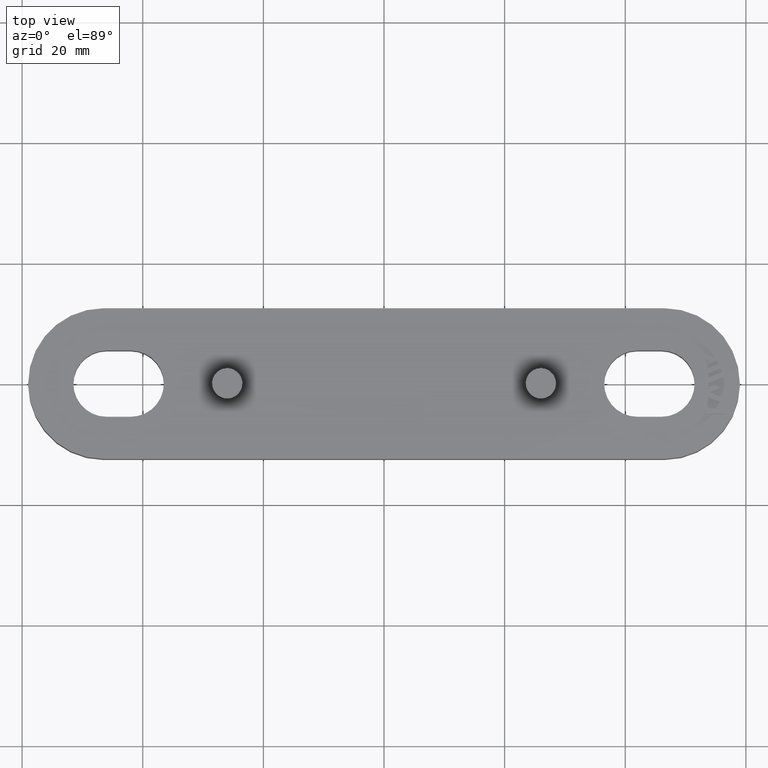
[diagram: clean part render]
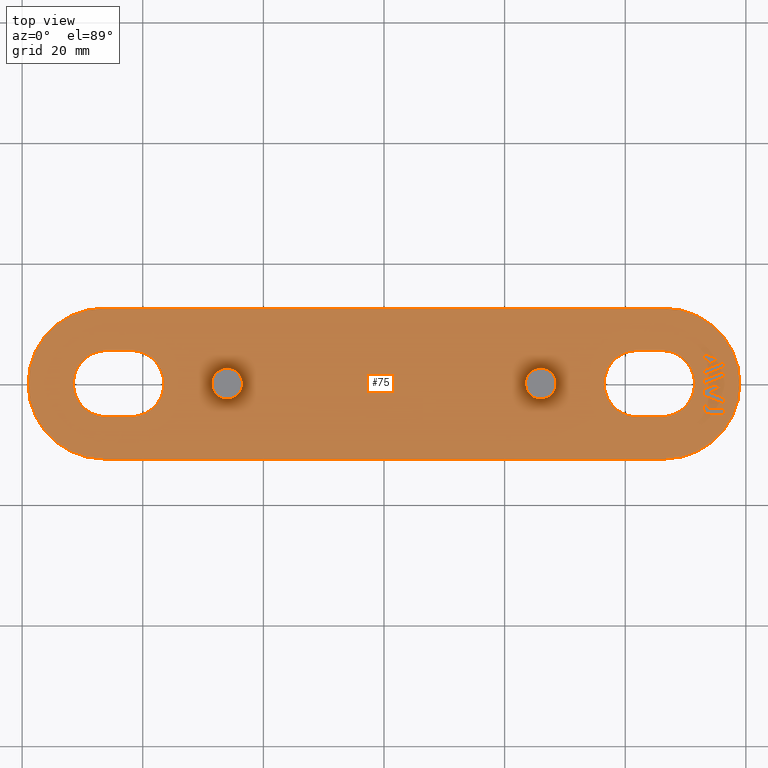
[diagram: same view with one face highlighted and labeled with its STEP entity id]
A machine part, top view. The second image highlights one B-rep face of the part: STEP entity #75.
In plain terms, the highlighted planar face has unit normal (0, -0, -1).
Its self-contained STEP definition (entity closure, byte-faithful):
#75 = ADVANCED_FACE( '', ( #486, #487, #488, #489, #490, #491, #492, #493, #494, #495 ), #496, .F. );
#486 = FACE_BOUND( '', #1378, .T. );
#487 = FACE_BOUND( '', #1379, .T. );
#488 = FACE_OUTER_BOUND( '', #1380, .T. );
#489 = FACE_BOUND( '', #1381, .T. );
#490 = FACE_BOUND( '', #1382, .T. );
#491 = FACE_BOUND( '', #1383, .T. );
#492 = FACE_BOUND( '', #1384, .T. );
#493 = FACE_BOUND( '', #1385, .T. );
#494 = FACE_BOUND( '', #1386, .T. );
#495 = FACE_BOUND( '', #1387, .T. );
#496 = PLANE( '', #1388 );
#1378 = EDGE_LOOP( '', ( #2270, #2271, #2272, #2273, #2274, #2275, #2276 ) );
#1379 = EDGE_LOOP( '', ( #2277, #2278, #2279, #2280 ) );
#1380 = EDGE_LOOP( '', ( #2281, #2282, #2283, #2284, #2285, #2286 ) );
#1381 = EDGE_LOOP( '', ( #2287 ) );
#1382 = EDGE_LOOP( '', ( #2288 ) );
#1383 = EDGE_LOOP( '', ( #2289, #2290, #2291, #2292, #2293, #2294 ) );
#1384 = EDGE_LOOP( '', ( #2295, #2296, #2297, #2298, #2299, #2300 ) );
#1385 = EDGE_LOOP( '', ( #2301, #2302, #2303, #2304, #2305 ) );
#1386 = EDGE_LOOP( '', ( #2306, #2307, #2308, #2309 ) );
#1387 = EDGE_LOOP( '', ( #2310, #2311, #2312, #2313, #2314, #2315, #2316, #2317 ) );
#1388 = AXIS2_PLACEMENT_3D( '', #2318, #2319, #2320 );
#2270 = ORIENTED_EDGE( '', *, *, #5564, .F. );
#2271 = ORIENTED_EDGE( '', *, *, #5565, .F. );
#2272 = ORIENTED_EDGE( '', *, *, #5566, .F. );
#2273 = ORIENTED_EDGE( '', *, *, #5567, .F. );
#2274 = ORIENTED_EDGE( '', *, *, #5568, .F. );
#2275 = ORIENTED_EDGE( '', *, *, #5569, .F. );
#2276 = ORIENTED_EDGE( '', *, *, #5570, .F. );
#2277 = ORIENTED_EDGE( '', *, *, #5571, .F. );
#2278 = ORIENTED_EDGE( '', *, *, #5572, .F. );
#2279 = ORIENTED_EDGE( '', *, *, #5573, .F. );
#2280 = ORIENTED_EDGE( '', *, *, #5574, .F. );
#2281 = ORIENTED_EDGE( '', *, *, #5575, .F. );
#2282 = ORIENTED_EDGE( '', *, *, #5576, .F. );
#2283 = ORIENTED_EDGE( '', *, *, #5577, .F. );
#2284 = ORIENTED_EDGE( '', *, *, #5578, .F. );
#2285 = ORIENTED_EDGE( '', *, *, #5579, .F. );
#2286 = ORIENTED_EDGE( '', *, *, #5580, .F. );
#2287 = ORIENTED_EDGE( '', *, *, #5581, .T. );
#2288 = ORIENTED_EDGE( '', *, *, #5582, .T. );
#2289 = ORIENTED_EDGE( '', *, *, #5583, .T. );
#2290 = ORIENTED_EDGE( '', *, *, #5584, .T. );
#2291 = ORIENTED_EDGE( '', *, *, #5585, .T. );
#2292 = ORIENTED_EDGE( '', *, *, #5586, .T. );
#2293 = ORIENTED_EDGE( '', *, *, #5587, .T. );
#2294 = ORIENTED_EDGE( '', *, *, #5588, .T. );
#2295 = ORIENTED_EDGE( '', *, *, #5589, .T. );
#2296 = ORIENTED_EDGE( '', *, *, #5590, .T. );
#2297 = ORIENTED_EDGE( '', *, *, #5591, .T. );
#2298 = ORIENTED_EDGE( '', *, *, #5592, .T. );
#2299 = ORIENTED_EDGE( '', *, *, #5593, .T. );
#2300 = ORIENTED_EDGE( '', *, *, #5594, .T. );
#2301 = ORIENTED_EDGE( '', *, *, #5595, .F. );
#2302 = ORIENTED_EDGE( '', *, *, #5596, .F. );
#2303 = ORIENTED_EDGE( '', *, *, #5597, .F. );
#2304 = ORIENTED_EDGE( '', *, *, #5598, .F. );
#2305 = ORIENTED_EDGE( '', *, *, #5599, .F. );
#2306 = ORIENTED_EDGE( '', *, *, #5600, .F. );
#2307 = ORIENTED_EDGE( '', *, *, #5601, .F. );
#2308 = ORIENTED_EDGE( '', *, *, #5602, .F. );
#2309 = ORIENTED_EDGE( '', *, *, #5603, .F. );
#2310 = ORIENTED_EDGE( '', *, *, #5604, .F. );
#2311 = ORIENTED_EDGE( '', *, *, #5605, .F. );
#2312 = ORIENTED_EDGE( '', *, *, #5606, .F. );
#2313 = ORIENTED_EDGE( '', *, *, #5607, .F. );
#2314 = ORIENTED_EDGE( '', *, *, #5608, .F. );
#2315 = ORIENTED_EDGE( '', *, *, #5609, .F. );
#2316 = ORIENTED_EDGE( '', *, *, #5610, .F. );
#2317 = ORIENTED_EDGE( '', *, *, #5611, .F. );
#2318 = CARTESIAN_POINT( '', ( 46.5000000000000, 6.12303176911189E-016, 10.0000000000000 ) );
#2319 = DIRECTION( '', ( 0.000000000000000, -6.12303176911189E-017, -1.00000000000000 ) );
#2320 = DIRECTION( '', ( 1.00000000000000, 6.12303176911189E-017, -3.74915180455534E-033 ) );
#5564 = EDGE_CURVE( '', #6596, #6597, #6598, .T. );
#5565 = EDGE_CURVE( '', #6599, #6596, #6600, .T. );
#5566 = EDGE_CURVE( '', #6601, #6599, #6602, .T. );
#5567 = EDGE_CURVE( '', #6603, #6601, #6604, .T. );
#5568 = EDGE_CURVE( '', #6605, #6603, #6606, .T. );
#5569 = EDGE_CURVE( '', #6607, #6605, #6608, .T. );
#5570 = EDGE_CURVE( '', #6597, #6607, #6609, .T. );
#5571 = EDGE_CURVE( '', #6610, #6611, #6612, .T. );
#5572 = EDGE_CURVE( '', #6613, #6610, #6614, .T. );
#5573 = EDGE_CURVE( '', #6615, #6613, #6616, .T. );
#5574 = EDGE_CURVE( '', #6611, #6615, #6617, .T. );
#5575 = EDGE_CURVE( '', #6618, #6619, #6620, .T. );
#5576 = EDGE_CURVE( '', #6621, #6618, #6622, .T. );
#5577 = EDGE_CURVE( '', #6623, #6621, #6624, .T. );
#5578 = EDGE_CURVE( '', #6625, #6623, #6626, .T. );
#5579 = EDGE_CURVE( '', #6627, #6625, #6628, .T. );
#5580 = EDGE_CURVE( '', #6619, #6627, #6629, .T. );
#5581 = EDGE_CURVE( '', #6630, #6630, #6631, .T. );
#5582 = EDGE_CURVE( '', #6632, #6632, #6633, .T. );
#5583 = EDGE_CURVE( '', #6634, #6635, #6636, .T. );
#5584 = EDGE_CURVE( '', #6635, #6637, #6638, .T. );
#5585 = EDGE_CURVE( '', #6637, #6639, #6640, .T. );
#5586 = EDGE_CURVE( '', #6639, #6641, #6642, .T. );
#5587 = EDGE_CURVE( '', #6641, #6643, #6644, .T. );
#5588 = EDGE_CURVE( '', #6643, #6634, #6645, .T. );
#5589 = EDGE_CURVE( '', #6646, #6647, #6648, .T. );
#5590 = EDGE_CURVE( '', #6647, #6649, #6650, .T. );
#5591 = EDGE_CURVE( '', #6649, #6651, #6652, .T. );
#5592 = EDGE_CURVE( '', #6651, #6653, #6654, .T. );
#5593 = EDGE_CURVE( '', #6653, #6655, #6656, .T. );
#5594 = EDGE_CURVE( '', #6655, #6646, #6657, .T. );
#5595 = EDGE_CURVE( '', #6658, #6659, #6660, .T. );
#5596 = EDGE_CURVE( '', #6661, #6658, #6662, .T. );
#5597 = EDGE_CURVE( '', #6663, #6661, #6664, .T. );
#5598 = EDGE_CURVE( '', #6665, #6663, #6666, .T. );
#5599 = EDGE_CURVE( '', #6659, #6665, #6667, .T. );
#5600 = EDGE_CURVE( '', #6668, #6669, #6670, .T. );
#5601 = EDGE_CURVE( '', #6671, #6668, #6672, .T. );
#5602 = EDGE_CURVE( '', #6673, #6671, #6674, .T. );
#5603 = EDGE_CURVE( '', #6669, #6673, #6675, .T. );
#5604 = EDGE_CURVE( '', #6676, #6677, #6678, .T. );
#5605 = EDGE_CURVE( '', #6679, #6676, #6680, .T. );
#5606 = EDGE_CURVE( '', #6681, #6679, #6682, .T. );
#5607 = EDGE_CURVE( '', #6683, #6681, #6684, .T. );
#5608 = EDGE_CURVE( '', #6685, #6683, #6686, .T. );
#5609 = EDGE_CURVE( '', #6687, #6685, #6688, .T. );
#5610 = EDGE_CURVE( '', #6689, #6687, #6690, .T. );
#5611 = EDGE_CURVE( '', #6677, #6689, #6691, .T. );
#6596 = VERTEX_POINT( '', #8320 );
#6597 = VERTEX_POINT( '', #8321 );
#6598 = LINE( '', #8322, #8323 );
#6599 = VERTEX_POINT( '', #8324 );
#6600 = LINE( '', #8325, #8326 );
#6601 = VERTEX_POINT( '', #8327 );
#6602 = LINE( '', #8328, #8329 );
#6603 = VERTEX_POINT( '', #8330 );
#6604 = LINE( '', #8331, #8332 );
#6605 = VERTEX_POINT( '', #8333 );
#6606 = LINE( '', #8334, #8335 );
#6607 = VERTEX_POINT( '', #8336 );
#6608 = LINE( '', #8337, #8338 );
#6609 = LINE( '', #8339, #8340 );
#6610 = VERTEX_POINT( '', #8341 );
#6611 = VERTEX_POINT( '', #8342 );
#6612 = LINE( '', #8343, #8344 );
#6613 = VERTEX_POINT( '', #8345 );
#6614 = LINE( '', #8346, #8347 );
#6615 = VERTEX_POINT( '', #8348 );
#6616 = LINE( '', #8349, #8350 );
#6617 = LINE( '', #8351, #8352 );
#6618 = VERTEX_POINT( '', #8353 );
#6619 = VERTEX_POINT( '', #8354 );
#6620 = CIRCLE( '', #8355, 12.5000000000000 );
#6621 = VERTEX_POINT( '', #8356 );
#6622 = LINE( '', #8357, #8358 );
#6623 = VERTEX_POINT( '', #8359 );
#6624 = CIRCLE( '', #8360, 12.5000000000000 );
#6625 = VERTEX_POINT( '', #8361 );
#6626 = CIRCLE( '', #8362, 12.5000000000000 );
#6627 = VERTEX_POINT( '', #8363 );
#6628 = LINE( '', #8364, #8365 );
#6629 = CIRCLE( '', #8366, 12.5000000000000 );
#6630 = VERTEX_POINT( '', #8367 );
#6631 = CIRCLE( '', #8368, 2.54363766232055 );
#6632 = VERTEX_POINT( '', #8369 );
#6633 = CIRCLE( '', #8370, 2.54363766232055 );
#6634 = VERTEX_POINT( '', #8371 );
#6635 = VERTEX_POINT( '', #8372 );
#6636 = CIRCLE( '', #8373, 5.50000000000000 );
#6637 = VERTEX_POINT( '', #8374 );
#6638 = CIRCLE( '', #8375, 5.50000000000000 );
#6639 = VERTEX_POINT( '', #8376 );
#6640 = LINE( '', #8377, #8378 );
#6641 = VERTEX_POINT( '', #8379 );
#6642 = CIRCLE( '', #8380, 5.50000000000000 );
#6643 = VERTEX_POINT( '', #8381 );
#6644 = CIRCLE( '', #8382, 5.50000000000000 );
#6645 = LINE( '', #8383, #8384 );
#6646 = VERTEX_POINT( '', #8385 );
#6647 = VERTEX_POINT( '', #8386 );
#6648 = CIRCLE( '', #8387, 5.50000000000000 );
#6649 = VERTEX_POINT( '', #8388 );
#6650 = CIRCLE( '', #8389, 5.50000000000000 );
#6651 = VERTEX_POINT( '', #8390 );
#6652 = LINE( '', #8391, #8392 );
#6653 = VERTEX_POINT( '', #8393 );
#6654 = CIRCLE( '', #8394, 5.50000000000000 );
#6655 = VERTEX_POINT( '', #8395 );
#6656 = CIRCLE( '', #8396, 5.50000000000000 );
#6657 = LINE( '', #8397, #8398 );
#6658 = VERTEX_POINT( '', #8399 );
#6659 = VERTEX_POINT( '', #8400 );
#6660 = LINE( '', #8401, #8402 );
#6661 = VERTEX_POINT( '', #8403 );
#6662 = LINE( '', #8404, #8405 );
#6663 = VERTEX_POINT( '', #8406 );
#6664 = LINE( '', #8407, #8408 );
#6665 = VERTEX_POINT( '', #8409 );
#6666 = LINE( '', #8410, #8411 );
#6667 = LINE( '', #8412, #8413 );
#6668 = VERTEX_POINT( '', #8414 );
#6669 = VERTEX_POINT( '', #8415 );
#6670 = LINE( '', #8416, #8417 );
#6671 = VERTEX_POINT( '', #8418 );
#6672 = LINE( '', #8419, #8420 );
#6673 = VERTEX_POINT( '', #8421 );
#6674 = LINE( '', #8422, #8423 );
#6675 = LINE( '', #8424, #8425 );
#6676 = VERTEX_POINT( '', #8426 );
#6677 = VERTEX_POINT( '', #8427 );
#6678 = CIRCLE( '', #8428, 1.19999999999999 );
#6679 = VERTEX_POINT( '', #8429 );
#6680 = LINE( '', #8430, #8431 );
#6681 = VERTEX_POINT( '', #8432 );
#6682 = LINE( '', #8433, #8434 );
#6683 = VERTEX_POINT( '', #8435 );
#6684 = LINE( '', #8436, #8437 );
#6685 = VERTEX_POINT( '', #8438 );
#6686 = CIRCLE( '', #8439, 0.800000000000000 );
#6687 = VERTEX_POINT( '', #8440 );
#6688 = LINE( '', #8441, #8442 );
#6689 = VERTEX_POINT( '', #8443 );
#6690 = LINE( '', #8444, #8445 );
#6691 = LINE( '', #8446, #8447 );
#8320 = CARTESIAN_POINT( '', ( 52.9000000000001, -1.94153815900082, 10.0000000000000 ) );
#8321 = CARTESIAN_POINT( '', ( 56.4973661704647, -3.39489558569055, 10.0000000000000 ) );
#8322 = CARTESIAN_POINT( '', ( 52.9000000000001, -1.94153815900082, 10.0000000000000 ) );
#8323 = VECTOR( '', #10996, 1000.00000000000 );
#8324 = CARTESIAN_POINT( '', ( 52.9000000000000, -0.958868987414781, 10.0000000000000 ) );
#8325 = CARTESIAN_POINT( '', ( 52.9000000000001, -0.958868987414782, 10.0000000000000 ) );
#8326 = VECTOR( '', #10997, 1000.00000000000 );
#8327 = CARTESIAN_POINT( '', ( 54.7327570440906, -0.218257757465009, 10.0000000000000 ) );
#8328 = CARTESIAN_POINT( '', ( 54.7327570440906, -0.218257757465004, 10.0000000000000 ) );
#8329 = VECTOR( '', #10998, 1000.00000000000 );
#8330 = CARTESIAN_POINT( '', ( 55.8833737475896, -0.683055647481207, 10.0000000000000 ) );
#8331 = CARTESIAN_POINT( '', ( 55.8833737475896, -0.683055647481210, 10.0000000000000 ) );
#8332 = VECTOR( '', #10999, 1000.00000000000 );
#8333 = CARTESIAN_POINT( '', ( 53.9849571645034, -1.45010139340526, 10.0000000000000 ) );
#8334 = CARTESIAN_POINT( '', ( 53.9849571645034, -1.45010139340526, 10.0000000000000 ) );
#8335 = VECTOR( '', #11000, 1000.00000000000 );
#8336 = CARTESIAN_POINT( '', ( 56.4973661704647, -2.46529980565816, 10.0000000000000 ) );
#8337 = CARTESIAN_POINT( '', ( 56.4973661704647, -2.46529980565815, 10.0000000000000 ) );
#8338 = VECTOR( '', #11001, 1000.00000000000 );
#8339 = CARTESIAN_POINT( '', ( 56.4973661704647, -3.39489558569055, 10.0000000000000 ) );
#8340 = VECTOR( '', #11002, 1000.00000000000 );
#8341 = CARTESIAN_POINT( '', ( 52.9000000000001, 1.30847678860036, 10.0000000000000 ) );
#8342 = CARTESIAN_POINT( '', ( 56.4973661704647, 2.76206261720165, 10.0000000000000 ) );
#8343 = CARTESIAN_POINT( '', ( 52.9000000000001, 1.30847678860036, 10.0000000000000 ) );
#8344 = VECTOR( '', #11003, 1000.00000000000 );
#8345 = CARTESIAN_POINT( '', ( 52.9000000000000, 2.23799443113670, 10.0000000000000 ) );
#8346 = CARTESIAN_POINT( '', ( 52.9000000000001, 2.23799443113670, 10.0000000000000 ) );
#8347 = VECTOR( '', #11004, 1000.00000000000 );
#8348 = CARTESIAN_POINT( '', ( 56.4973661704647, 3.69137590013291, 10.0000000000000 ) );
#8349 = CARTESIAN_POINT( '', ( 56.4973661704647, 3.69137590013291, 10.0000000000000 ) );
#8350 = VECTOR( '', #11005, 1000.00000000000 );
#8351 = CARTESIAN_POINT( '', ( 56.4973661704647, 2.76206261720165, 10.0000000000000 ) );
#8352 = VECTOR( '', #11006, 1000.00000000000 );
#8353 = CARTESIAN_POINT( '', ( 46.5000000000000, 12.5000000000000, 10.0000000000000 ) );
#8354 = CARTESIAN_POINT( '', ( 59.0000000000000, 2.14306111918916E-015, 10.0000000000000 ) );
#8355 = AXIS2_PLACEMENT_3D( '', #11007, #11008, #11009 );
#8356 = CARTESIAN_POINT( '', ( -46.5000000000000, 12.5000000000000, 10.0000000000000 ) );
#8357 = CARTESIAN_POINT( '', ( -46.5000000000000, 12.5000000000000, 10.0000000000000 ) );
#8358 = VECTOR( '', #11010, 1000.00000000000 );
#8359 = CARTESIAN_POINT( '', ( -59.0000000000000, -2.44921270764475E-015, 10.0000000000000 ) );
#8360 = AXIS2_PLACEMENT_3D( '', #11011, #11012, #11013 );
#8361 = CARTESIAN_POINT( '', ( -46.5000000000000, -12.5000000000000, 10.0000000000000 ) );
#8362 = AXIS2_PLACEMENT_3D( '', #11014, #11015, #11016 );
#8363 = CARTESIAN_POINT( '', ( 46.5000000000000, -12.5000000000000, 10.0000000000000 ) );
#8364 = CARTESIAN_POINT( '', ( 46.5000000000000, -12.5000000000000, 10.0000000000000 ) );
#8365 = VECTOR( '', #11017, 1000.00000000000 );
#8366 = AXIS2_PLACEMENT_3D( '', #11018, #11019, #11020 );
#8367 = CARTESIAN_POINT( '', ( -26.0000000000000, 2.54363766232055, 10.0000000000000 ) );
#8368 = AXIS2_PLACEMENT_3D( '', #11021, #11022, #11023 );
#8369 = CARTESIAN_POINT( '', ( 26.0000000000000, 2.54363766232055, 10.0000000000000 ) );
#8370 = AXIS2_PLACEMENT_3D( '', #11024, #11025, #11026 );
#8371 = CARTESIAN_POINT( '', ( -46.0000000000000, -5.50000000000001, 10.0000099999376 ) );
#8372 = CARTESIAN_POINT( '', ( -51.5000000000000, -6.32659011469668E-015, 10.0000099999376 ) );
#8373 = AXIS2_PLACEMENT_3D( '', #11027, #11028, #11029 );
#8374 = CARTESIAN_POINT( '', ( -46.0000000000000, 5.50000000000000, 10.0000099999376 ) );
#8375 = AXIS2_PLACEMENT_3D( '', #11030, #11031, #11032 );
#8376 = CARTESIAN_POINT( '', ( -42.0000000000000, 5.50000000000000, 10.0000099999376 ) );
#8377 = CARTESIAN_POINT( '', ( -46.0000000000000, 5.50000000000000, 10.0000099999376 ) );
#8378 = VECTOR( '', #11033, 1000.00000000000 );
#8379 = CARTESIAN_POINT( '', ( -36.5000000000000, -1.12241968676626E-015, 10.0000099999376 ) );
#8380 = AXIS2_PLACEMENT_3D( '', #11034, #11035, #11036 );
#8381 = CARTESIAN_POINT( '', ( -42.0000000000000, -5.50000000000000, 10.0000099999376 ) );
#8382 = AXIS2_PLACEMENT_3D( '', #11037, #11038, #11039 );
#8383 = CARTESIAN_POINT( '', ( -42.0000000000000, -5.50000000000001, 10.0000099999376 ) );
#8384 = VECTOR( '', #11040, 1000.00000000000 );
#8385 = CARTESIAN_POINT( '', ( 42.0000000000000, -5.50000000000000, 10.0000099999376 ) );
#8386 = CARTESIAN_POINT( '', ( 36.5000000000000, 1.47966552719895E-015, 10.0000099999376 ) );
#8387 = AXIS2_PLACEMENT_3D( '', #11041, #11042, #11043 );
#8388 = CARTESIAN_POINT( '', ( 42.0000000000000, 5.50000000000000, 10.0000099999376 ) );
#8389 = AXIS2_PLACEMENT_3D( '', #11044, #11045, #11046 );
#8390 = CARTESIAN_POINT( '', ( 46.0000000000000, 5.50000000000000, 10.0000099999376 ) );
#8391 = CARTESIAN_POINT( '', ( 42.0000000000000, 5.50000000000000, 10.0000099999376 ) );
#8392 = VECTOR( '', #11047, 1000.00000000000 );
#8393 = CARTESIAN_POINT( '', ( 51.5000000000000, 4.94911247915256E-015, 10.0000099999376 ) );
#8394 = AXIS2_PLACEMENT_3D( '', #11048, #11049, #11050 );
#8395 = CARTESIAN_POINT( '', ( 46.0000000000000, -5.50000000000000, 10.0000099999376 ) );
#8396 = AXIS2_PLACEMENT_3D( '', #11051, #11052, #11053 );
#8397 = CARTESIAN_POINT( '', ( 46.0000000000000, -5.50000000000000, 10.0000099999376 ) );
#8398 = VECTOR( '', #11054, 1000.00000000000 );
#8399 = CARTESIAN_POINT( '', ( 52.9000000000001, 4.13597825270627, 10.0000000000000 ) );
#8400 = CARTESIAN_POINT( '', ( 53.7308540273209, 3.80004712542054, 10.0000000000000 ) );
#8401 = CARTESIAN_POINT( '', ( 52.9000000000001, 4.13597825270627, 10.0000000000000 ) );
#8402 = VECTOR( '', #11055, 1000.00000000000 );
#8403 = CARTESIAN_POINT( '', ( 52.9000000000001, 5.06529153563754, 10.0000000000000 ) );
#8404 = CARTESIAN_POINT( '', ( 52.9000000000001, 5.06529153563754, 10.0000000000000 ) );
#8405 = VECTOR( '', #11056, 1000.00000000000 );
#8406 = CARTESIAN_POINT( '', ( 55.5972101947166, 3.97568819540701, 10.0000000000000 ) );
#8407 = CARTESIAN_POINT( '', ( 55.5972101947166, 3.97568819540701, 10.0000000000000 ) );
#8408 = VECTOR( '', #11057, 1000.00000000000 );
#8409 = CARTESIAN_POINT( '', ( 53.7308540273209, 3.22197991900249, 10.0000000000000 ) );
#8410 = CARTESIAN_POINT( '', ( 53.7308540273209, 3.22197991900250, 10.0000000000000 ) );
#8411 = VECTOR( '', #11058, 1000.00000000000 );
#8412 = CARTESIAN_POINT( '', ( 53.7308540273209, 3.80004712542054, 10.0000000000000 ) );
#8413 = VECTOR( '', #11059, 1000.00000000000 );
#8414 = CARTESIAN_POINT( '', ( 52.9000000000001, -0.290000000000029, 10.0000000000000 ) );
#8415 = CARTESIAN_POINT( '', ( 56.4973661704647, 1.16358582860126, 10.0000000000000 ) );
#8416 = CARTESIAN_POINT( '', ( 52.9000000000001, -0.290000000000026, 10.0000000000000 ) );
#8417 = VECTOR( '', #11060, 1000.00000000000 );
#8418 = CARTESIAN_POINT( '', ( 52.9000000000000, 0.639583758879130, 10.0000000000000 ) );
#8419 = CARTESIAN_POINT( '', ( 52.9000000000001, 0.639583758879129, 10.0000000000000 ) );
#8420 = VECTOR( '', #11061, 1000.00000000000 );
#8421 = CARTESIAN_POINT( '', ( 56.4973661704647, 2.09316958748041, 10.0000000000000 ) );
#8422 = CARTESIAN_POINT( '', ( 56.4973661704647, 2.09316958748042, 10.0000000000000 ) );
#8423 = VECTOR( '', #11062, 1000.00000000000 );
#8424 = CARTESIAN_POINT( '', ( 56.4973661704647, 1.16358582860126, 10.0000000000000 ) );
#8425 = VECTOR( '', #11063, 1000.00000000000 );
#8426 = CARTESIAN_POINT( '', ( 52.9000000000001, -3.87288028181887, 10.0000000000000 ) );
#8427 = CARTESIAN_POINT( '', ( 54.1000000000001, -5.07288028181887, 10.0000000000000 ) );
#8428 = AXIS2_PLACEMENT_3D( '', #11064, #11065, #11066 );
#8429 = CARTESIAN_POINT( '', ( 52.9000000000000, -2.61040714641557, 10.0000000000000 ) );
#8430 = CARTESIAN_POINT( '', ( 52.9000000000001, -2.61040714641557, 10.0000000000000 ) );
#8431 = VECTOR( '', #11067, 1000.00000000000 );
#8432 = CARTESIAN_POINT( '', ( 53.4231249674404, -2.82176335265064, 10.0000000000000 ) );
#8433 = CARTESIAN_POINT( '', ( 53.4231249674404, -2.82176335265064, 10.0000000000000 ) );
#8434 = VECTOR( '', #11068, 1000.00000000000 );
#8435 = CARTESIAN_POINT( '', ( 53.4231249674404, -3.33274195062400, 10.0000000000000 ) );
#8436 = CARTESIAN_POINT( '', ( 53.4231249674404, -3.33274195062400, 10.0000000000000 ) );
#8437 = VECTOR( '', #11069, 1000.00000000000 );
#8438 = CARTESIAN_POINT( '', ( 54.2231249674404, -4.13274195062400, 10.0000000000000 ) );
#8439 = AXIS2_PLACEMENT_3D( '', #11070, #11071, #11072 );
#8440 = CARTESIAN_POINT( '', ( 56.4973661704647, -4.13274195062400, 10.0000000000000 ) );
#8441 = CARTESIAN_POINT( '', ( 56.4973661704647, -4.13274195062400, 10.0000000000000 ) );
#8442 = VECTOR( '', #11073, 1000.00000000000 );
#8443 = CARTESIAN_POINT( '', ( 56.4973661704647, -5.07288028181887, 10.0000000000000 ) );
#8444 = CARTESIAN_POINT( '', ( 56.4973661704647, -5.07288028181887, 10.0000000000000 ) );
#8445 = VECTOR( '', #11074, 1000.00000000000 );
#8446 = CARTESIAN_POINT( '', ( 54.1000000000001, -5.07288028181887, 10.0000000000000 ) );
#8447 = VECTOR( '', #11075, 1000.00000000000 );
#10996 = DIRECTION( '', ( 0.927190376050329, -0.374590451773198, -5.79093005449536E-017 ) );
#10997 = DIRECTION( '', ( -3.06151588455594E-016, -1.00000000000000, -3.06151588455594E-016 ) );
#10998 = DIRECTION( '', ( -0.927161130553612, -0.374662832411421, -1.71473991852683E-016 ) );
#10999 = DIRECTION( '', ( -0.927206645422846, 0.374550179126525, 5.78959748313555E-017 ) );
#11000 = DIRECTION( '', ( 0.927177805503197, 0.374621565025663, 1.71462378789443E-016 ) );
#11001 = DIRECTION( '', ( -0.927168564368796, 0.374644435760503, 5.79271633646079E-017 ) );
#11002 = DIRECTION( '', ( 3.06151588455594E-016, 1.00000000000000, 3.06151588455594E-016 ) );
#11003 = DIRECTION( '', ( 0.927169929060563, 0.374641058409019, 1.71467864442637E-016 ) );
#11004 = DIRECTION( '', ( -3.06151588455594E-016, -1.00000000000000, -3.06151588455594E-016 ) );
#11005 = DIRECTION( '', ( -0.927188223823227, -0.374595778945159, -1.71455122256982E-016 ) );
#11006 = DIRECTION( '', ( 3.06151588455594E-016, 1.00000000000000, 3.06151588455594E-016 ) );
#11007 = CARTESIAN_POINT( '', ( 46.5000000000000, 6.12303176911189E-016, 10.0000000000000 ) );
#11008 = DIRECTION( '', ( 0.000000000000000, -6.12303176911189E-017, -1.00000000000000 ) );
#11009 = DIRECTION( '', ( -6.12303176911189E-017, 1.00000000000000, -6.12303176911189E-017 ) );
#11010 = DIRECTION( '', ( 1.00000000000000, 0.000000000000000, 0.000000000000000 ) );
#11011 = CARTESIAN_POINT( '', ( -46.5000000000000, 6.12303176911189E-016, 10.0000000000000 ) );
#11012 = DIRECTION( '', ( -5.60519385729927E-049, -6.12303176911189E-017, -1.00000000000000 ) );
#11013 = DIRECTION( '', ( -6.12303176911189E-017, 1.00000000000000, -6.12303176911189E-017 ) );
#11014 = CARTESIAN_POINT( '', ( -46.5000000000000, 6.12303176911189E-016, 10.0000000000000 ) );
#11015 = DIRECTION( '', ( -5.60519385729927E-049, -6.12303176911189E-017, -1.00000000000000 ) );
#11016 = DIRECTION( '', ( -6.12303176911189E-017, 1.00000000000000, -6.12303176911189E-017 ) );
#11017 = DIRECTION( '', ( -1.00000000000000, 0.000000000000000, 0.000000000000000 ) );
#11018 = CARTESIAN_POINT( '', ( 46.5000000000000, 6.12303176911189E-016, 10.0000000000000 ) );
#11019 = DIRECTION( '', ( 0.000000000000000, -6.12303176911189E-017, -1.00000000000000 ) );
#11020 = DIRECTION( '', ( -6.12303176911189E-017, 1.00000000000000, -6.12303176911189E-017 ) );
#11021 = CARTESIAN_POINT( '', ( -26.0000000000000, -1.35778703818507E-015, 10.0000000000000 ) );
#11022 = DIRECTION( '', ( 0.000000000000000, -6.12303176911189E-017, -1.00000000000000 ) );
#11023 = DIRECTION( '', ( 0.000000000000000, 1.00000000000000, -6.12303176911189E-017 ) );
#11024 = CARTESIAN_POINT( '', ( 26.0000000000000, 3.12449447825020E-015, 10.0000000000000 ) );
#11025 = DIRECTION( '', ( 0.000000000000000, -6.12303176911189E-017, -1.00000000000000 ) );
#11026 = DIRECTION( '', ( 0.000000000000000, 1.00000000000000, -6.12303176911189E-017 ) );
#11027 = CARTESIAN_POINT( '', ( -46.0000000000000, -5.45922837670828E-015, 10.0000099999376 ) );
#11028 = DIRECTION( '', ( 0.000000000000000, -6.12303176911189E-017, -1.00000000000000 ) );
#11029 = DIRECTION( '', ( 1.15648231731787E-016, -1.00000000000000, 6.12303176911189E-017 ) );
#11030 = CARTESIAN_POINT( '', ( -46.0000000000000, -1.98978142475466E-015, 10.0000099999376 ) );
#11031 = DIRECTION( '', ( 1.08571678537563E-048, -6.12303176911189E-017, -1.00000000000000 ) );
#11032 = DIRECTION( '', ( -1.00000000000000, 4.20539024479227E-017, -2.57497380703763E-033 ) );
#11033 = DIRECTION( '', ( 1.00000000000000, 1.15648231731787E-016, -7.08117796935346E-033 ) );
#11034 = CARTESIAN_POINT( '', ( -42.0000000000000, -1.12241968676626E-015, 10.0000099999376 ) );
#11035 = DIRECTION( '', ( 0.000000000000000, -6.12303176911189E-017, -1.00000000000000 ) );
#11036 = DIRECTION( '', ( -1.15648231731787E-016, 1.00000000000000, -6.12303176911189E-017 ) );
#11037 = CARTESIAN_POINT( '', ( -42.0000000000000, -4.59186663871988E-015, 10.0000099999376 ) );
#11038 = DIRECTION( '', ( 1.08571678537563E-048, -6.12303176911189E-017, -1.00000000000000 ) );
#11039 = DIRECTION( '', ( 1.00000000000000, -4.20539024479227E-017, 2.57497380703763E-033 ) );
#11040 = DIRECTION( '', ( -1.00000000000000, -1.15648231731787E-016, 7.08117796935346E-033 ) );
#11041 = CARTESIAN_POINT( '', ( 42.0000000000000, 1.47966552719895E-015, 10.0000099999376 ) );
#11042 = DIRECTION( '', ( 0.000000000000000, -6.12303176911189E-017, -1.00000000000000 ) );
#11043 = DIRECTION( '', ( 5.78241158658936E-017, -1.00000000000000, 6.12303176911189E-017 ) );
#11044 = CARTESIAN_POINT( '', ( 42.0000000000000, 3.21438900317576E-015, 10.0000099999376 ) );
#11045 = DIRECTION( '', ( 1.44762238050085E-048, -6.12303176911189E-017, -1.00000000000000 ) );
#11046 = DIRECTION( '', ( -1.00000000000000, 9.98780183138162E-017, -6.11556279171436E-033 ) );
#11047 = DIRECTION( '', ( 1.00000000000000, 5.78241158658936E-017, -3.54058898467673E-033 ) );
#11048 = CARTESIAN_POINT( '', ( 46.0000000000000, 4.08175074116416E-015, 10.0000099999376 ) );
#11049 = DIRECTION( '', ( 0.000000000000000, -6.12303176911189E-017, -1.00000000000000 ) );
#11050 = DIRECTION( '', ( -5.78241158658936E-017, 1.00000000000000, -6.12303176911189E-017 ) );
#11051 = CARTESIAN_POINT( '', ( 46.0000000000000, 2.34702726518735E-015, 10.0000099999376 ) );
#11052 = DIRECTION( '', ( -7.23811190250423E-049, -6.12303176911189E-017, -1.00000000000000 ) );
#11053 = DIRECTION( '', ( 1.00000000000000, 5.78241158658936E-017, -3.54058898467673E-033 ) );
#11054 = DIRECTION( '', ( -1.00000000000000, -5.78241158658936E-017, 3.54058898467673E-033 ) );
#11055 = DIRECTION( '', ( 0.927089140205383, -0.374840934415179, -5.79921849066243E-017 ) );
#11056 = DIRECTION( '', ( -2.50640437224336E-016, -1.00000000000000, -3.06151588455594E-016 ) );
#11057 = DIRECTION( '', ( -0.927200607094025, 0.374565126786346, 5.79009208099455E-017 ) );
#11058 = DIRECTION( '', ( 0.927243990558706, 0.374457717202845, 1.71416269050197E-016 ) );
#11059 = DIRECTION( '', ( -3.06151588455594E-016, -1.00000000000000, -3.06151588455594E-016 ) );
#11060 = DIRECTION( '', ( 0.927169929060564, 0.374641058409019, 1.71467864442637E-016 ) );
#11061 = DIRECTION( '', ( -5.28196193380626E-016, -1.00000000000000, -3.06151588455594E-016 ) );
#11062 = DIRECTION( '', ( -0.927169929060563, -0.374641058409019, -1.71467864442637E-016 ) );
#11063 = DIRECTION( '', ( 5.28196193380626E-016, 1.00000000000000, 3.06151588455594E-016 ) );
#11064 = CARTESIAN_POINT( '', ( 54.1000000000001, -3.87288028181887, 10.0000000000000 ) );
#11065 = DIRECTION( '', ( -3.80126536546450E-048, 6.12303176911189E-017, 1.00000000000000 ) );
#11066 = DIRECTION( '', ( -1.00000000000000, 3.06151588455594E-016, -1.87457590227767E-032 ) );
#11067 = DIRECTION( '', ( -3.06151588455594E-016, -1.00000000000000, -3.06151588455594E-016 ) );
#11068 = DIRECTION( '', ( -0.927183854566787, 0.374606593415912, 5.79146416470199E-017 ) );
#11069 = DIRECTION( '', ( 3.06151588455594E-016, 1.00000000000000, 3.06151588455594E-016 ) );
#11070 = CARTESIAN_POINT( '', ( 54.2231249674404, -3.33274195062400, 10.0000000000000 ) );
#11071 = DIRECTION( '', ( 2.13821176807375E-048, -6.12303176911189E-017, -1.00000000000000 ) );
#11072 = DIRECTION( '', ( -3.06151588455594E-016, -1.00000000000000, 6.12303176911189E-017 ) );
#11073 = DIRECTION( '', ( -1.00000000000000, 3.66866910114783E-016, -6.12303176911189E-017 ) );
#11074 = DIRECTION( '', ( 3.06151588455594E-016, 1.00000000000000, 3.06151588455595E-016 ) );
#11075 = DIRECTION( '', ( 1.00000000000000, -3.66866910114783E-016, 6.12303176911189E-017 ) );